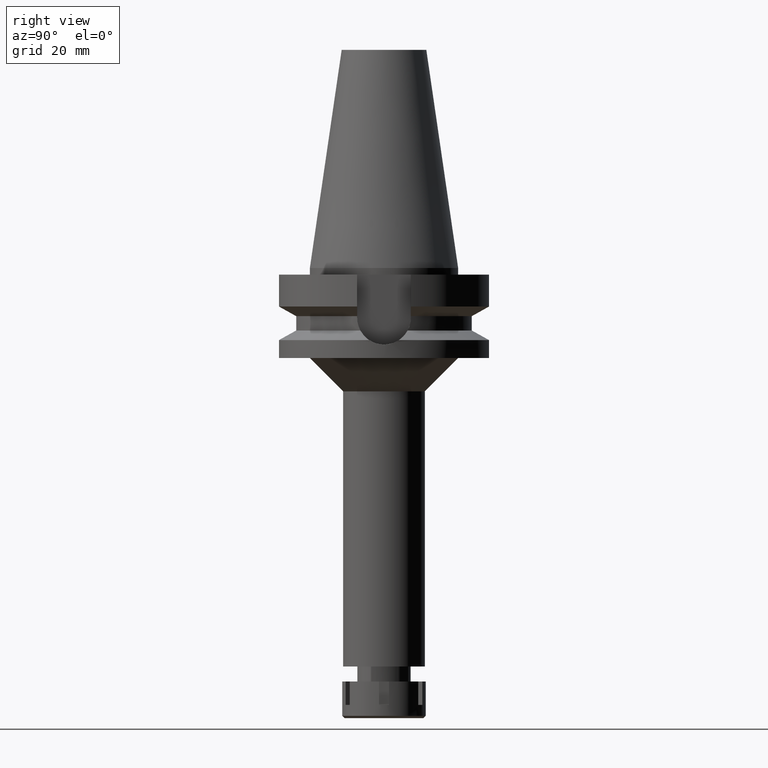
[diagram: clean part render]
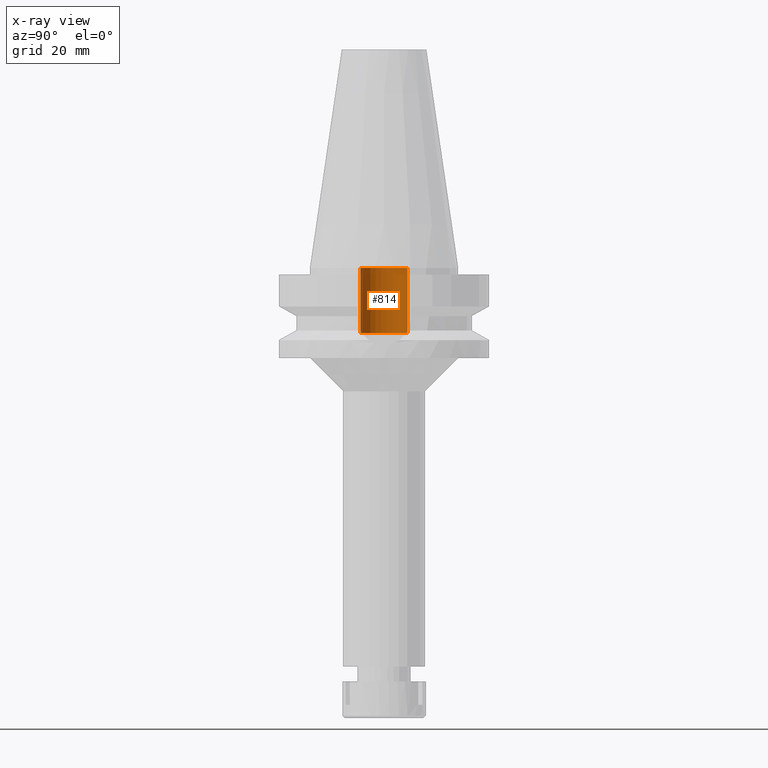
[diagram: x-ray — body ghosted, one internal face saturated and labeled with its STEP entity id]
A machine part, right view, then the same camera in x-ray: the body is ghosted and one INTERNAL B-rep face — a face not visible from any outside direction — is saturated and labeled: STEP entity #814.
In plain terms, the highlighted cylindrical surface (edge-blend (fillet) strip) has radius 7.1 mm, axis along (0, 0, -1).
Its self-contained STEP definition (entity closure, byte-faithful):
#34 = CARTESIAN_POINT ( 'NONE',  ( 0.0000000000000000000, 2.144601474666999952E-14, 9.947598300640998705E-14 ) ) ;
#52 = AXIS2_PLACEMENT_3D ( 'NONE', #1466, #2276, #2847 ) ;
#89 = VECTOR ( 'NONE', #381, 1000.000000000000000 ) ;
#102 = AXIS2_PLACEMENT_3D ( 'NONE', #2151, #3265, #3354 ) ;
#194 = VERTEX_POINT ( 'NONE', #3332 ) ;
#215 = CARTESIAN_POINT ( 'NONE',  ( 0.0000000000000000000, -7.100000000000000533, -19.59999999999999787 ) ) ;
#256 = EDGE_CURVE ( 'NONE', #861, #377, #3032, .T. ) ;
#342 = ORIENTED_EDGE ( 'NONE', *, *, #1363, .F. ) ;
#377 = VERTEX_POINT ( 'NONE', #893 ) ;
#381 = DIRECTION ( 'NONE',  ( 0.0000000000000000000, 0.0000000000000000000, 1.000000000000000000 ) ) ;
#492 = CYLINDRICAL_SURFACE ( 'NONE', #102, 7.100000000000000533 ) ;
#648 = CIRCLE ( 'NONE', #1586, 7.100000000000000533 ) ;
#688 = ORIENTED_EDGE ( 'NONE', *, *, #2040, .T. ) ;
#814 = ADVANCED_FACE ( 'NONE', ( #1064 ), #492, .F. ) ;
#861 = VERTEX_POINT ( 'NONE', #1136 ) ;
#893 = CARTESIAN_POINT ( 'NONE',  ( 0.0000000000000000000, -7.100000000000000533, 9.947598300640998705E-14 ) ) ;
#1064 = FACE_OUTER_BOUND ( 'NONE', #2181, .T. ) ;
#1136 = CARTESIAN_POINT ( 'NONE',  ( 0.0000000000000000000, -7.100000000000000533, -19.59999999999999787 ) ) ;
#1363 = EDGE_CURVE ( 'NONE', #377, #2577, #648, .T. ) ;
#1367 = EDGE_CURVE ( 'NONE', #861, #194, #1651, .T. ) ;
#1445 = LINE ( 'NONE', #3467, #89 ) ;
#1466 = CARTESIAN_POINT ( 'NONE',  ( 0.0000000000000000000, 2.144601474666999952E-14, -19.59999999999999787 ) ) ;
#1586 = AXIS2_PLACEMENT_3D ( 'NONE', #34, #3357, #2833 ) ;
#1651 = CIRCLE ( 'NONE', #52, 7.100000000000000533 ) ;
#1888 = ORIENTED_EDGE ( 'NONE', *, *, #1367, .T. ) ;
#1962 = DIRECTION ( 'NONE',  ( 0.0000000000000000000, 0.0000000000000000000, 1.000000000000000000 ) ) ;
#2040 = EDGE_CURVE ( 'NONE', #194, #2577, #1445, .T. ) ;
#2151 = CARTESIAN_POINT ( 'NONE',  ( 0.0000000000000000000, 2.144601474666999952E-14, 75.12000000000000455 ) ) ;
#2181 = EDGE_LOOP ( 'NONE', ( #342, #2453, #1888, #688 ) ) ;
#2276 = DIRECTION ( 'NONE',  ( 0.0000000000000000000, 0.0000000000000000000, -1.000000000000000000 ) ) ;
#2453 = ORIENTED_EDGE ( 'NONE', *, *, #256, .F. ) ;
#2577 = VERTEX_POINT ( 'NONE', #2603 ) ;
#2603 = CARTESIAN_POINT ( 'NONE',  ( 0.0000000000000000000, 7.100000000000000533, 9.947598300640998705E-14 ) ) ;
#2833 = DIRECTION ( 'NONE',  ( 0.0000000000000000000, -1.000000000000000000, 0.0000000000000000000 ) ) ;
#2847 = DIRECTION ( 'NONE',  ( 0.0000000000000000000, -1.000000000000000000, 0.0000000000000000000 ) ) ;
#3032 = LINE ( 'NONE', #215, #3401 ) ;
#3265 = DIRECTION ( 'NONE',  ( 0.0000000000000000000, 0.0000000000000000000, -1.000000000000000000 ) ) ;
#3332 = CARTESIAN_POINT ( 'NONE',  ( 0.0000000000000000000, 7.100000000000000533, -19.59999999999999787 ) ) ;
#3354 = DIRECTION ( 'NONE',  ( 0.0000000000000000000, -1.000000000000000000, 0.0000000000000000000 ) ) ;
#3357 = DIRECTION ( 'NONE',  ( 0.0000000000000000000, 0.0000000000000000000, -1.000000000000000000 ) ) ;
#3401 = VECTOR ( 'NONE', #1962, 1000.000000000000000 ) ;
#3467 = CARTESIAN_POINT ( 'NONE',  ( 0.0000000000000000000, 7.100000000000000533, -19.59999999999999787 ) ) ;